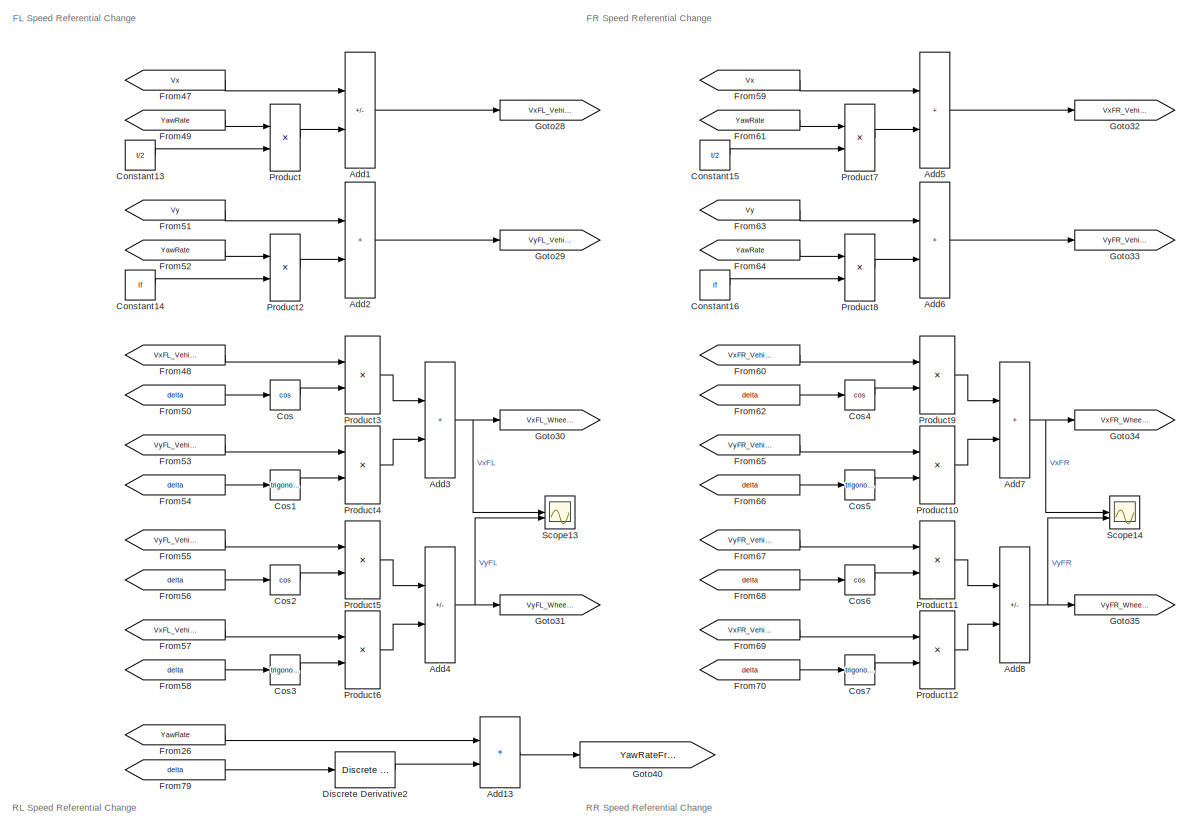
[diagram: root canvas - part 1/8, top center region]
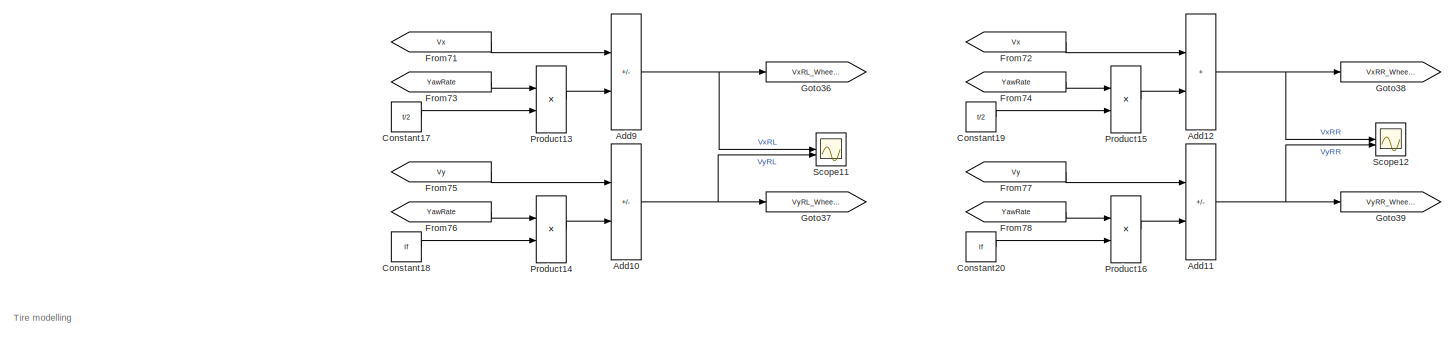
[diagram: root canvas - part 2/8, top center region]
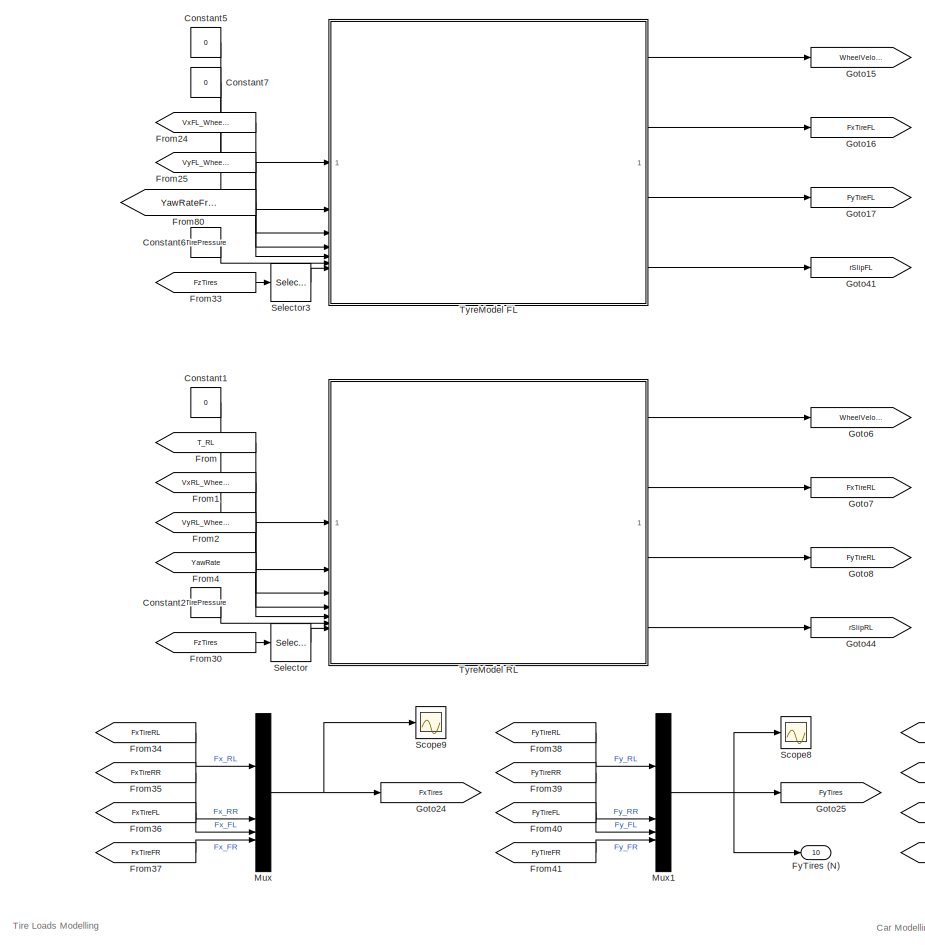
[diagram: root canvas - part 3/8, central region]
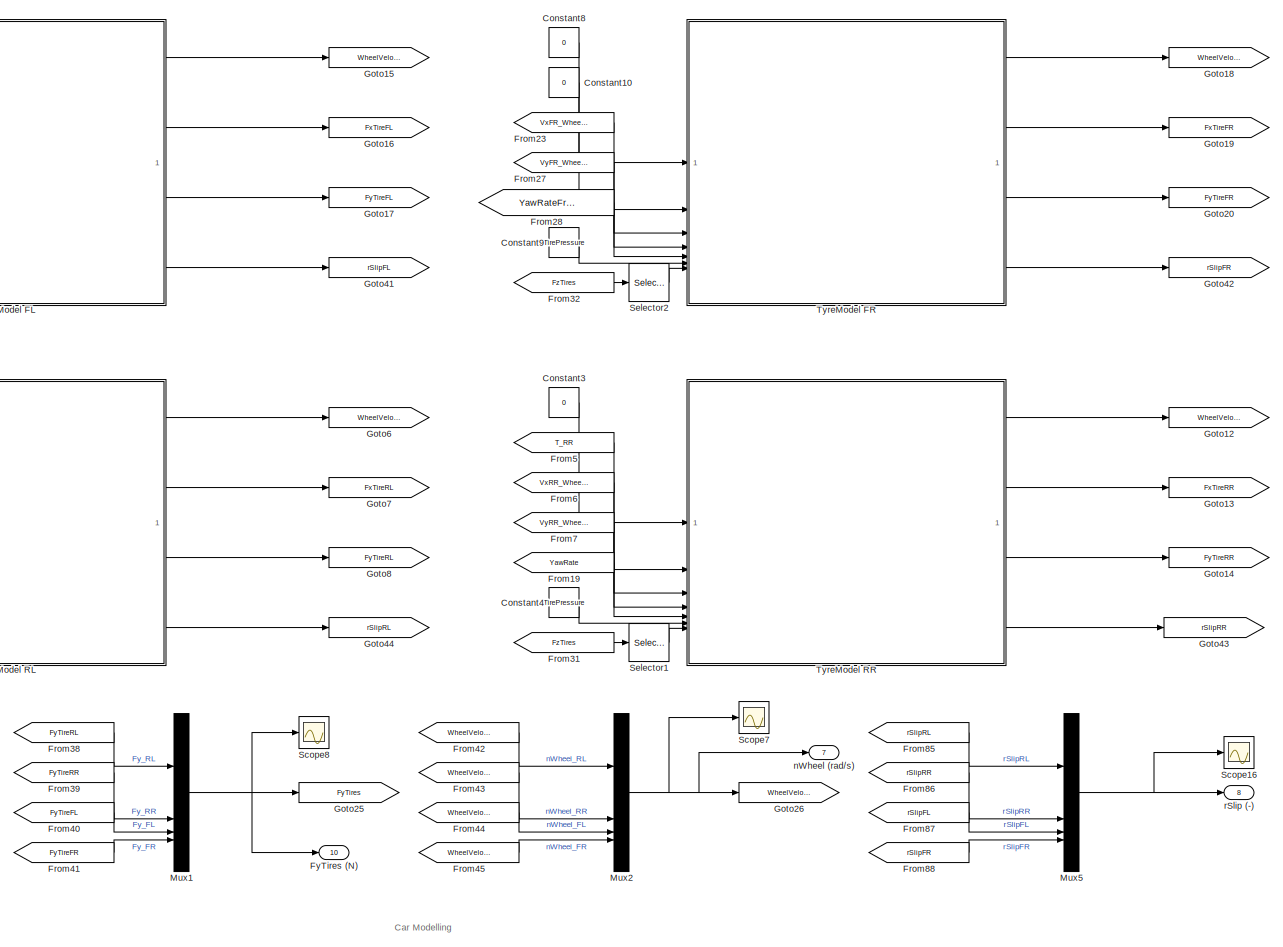
[diagram: root canvas - part 4/8, middle right region]
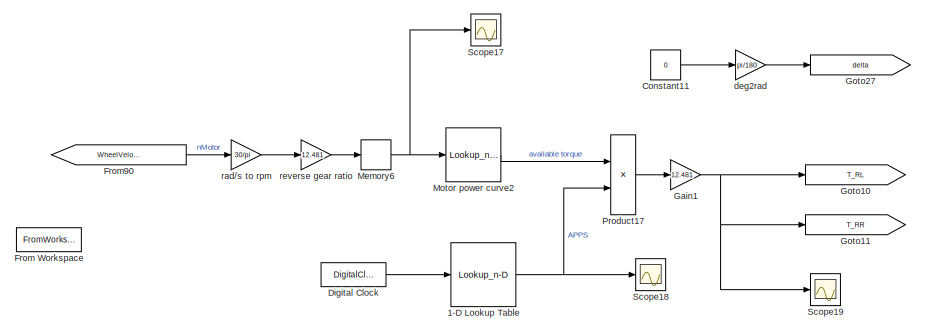
[diagram: root canvas - part 5/8, middle left region]
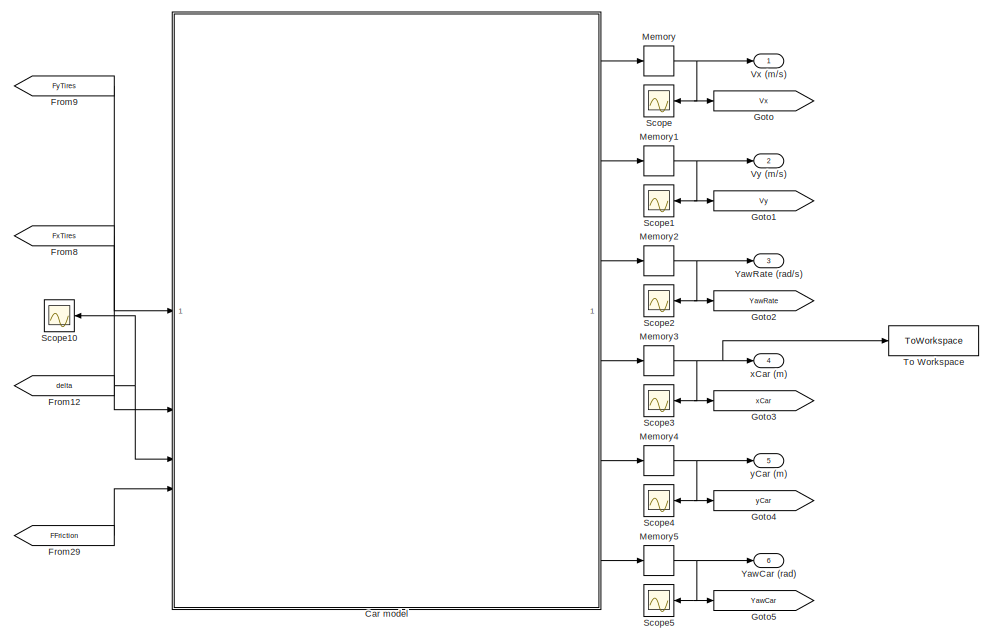
[diagram: root canvas - part 6/8, middle right region]
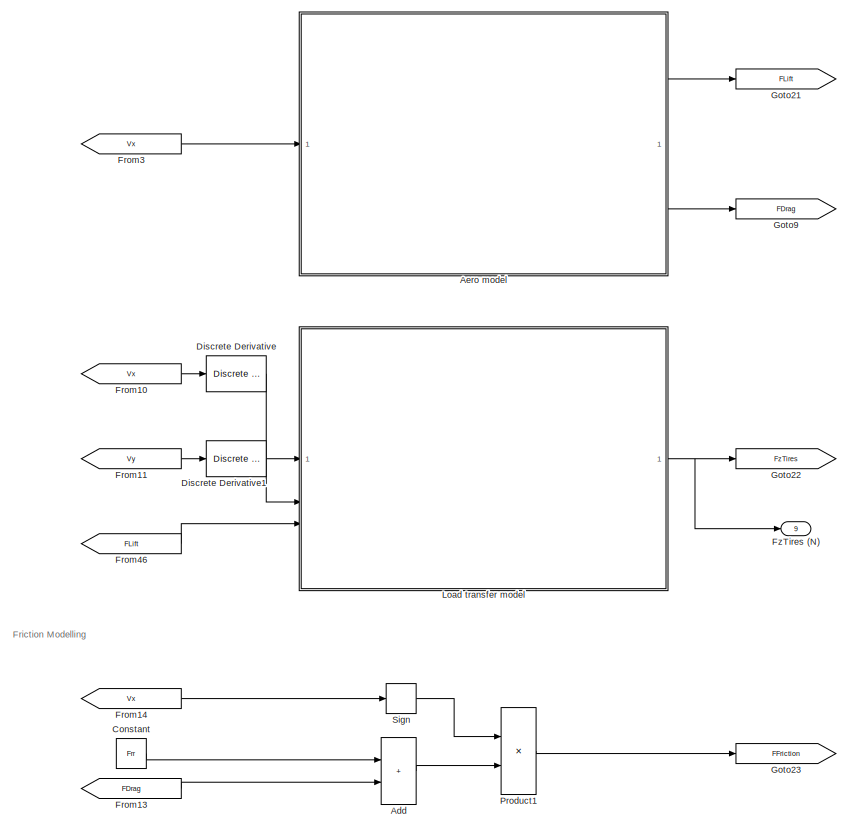
[diagram: root canvas - part 7/8, bottom center region]
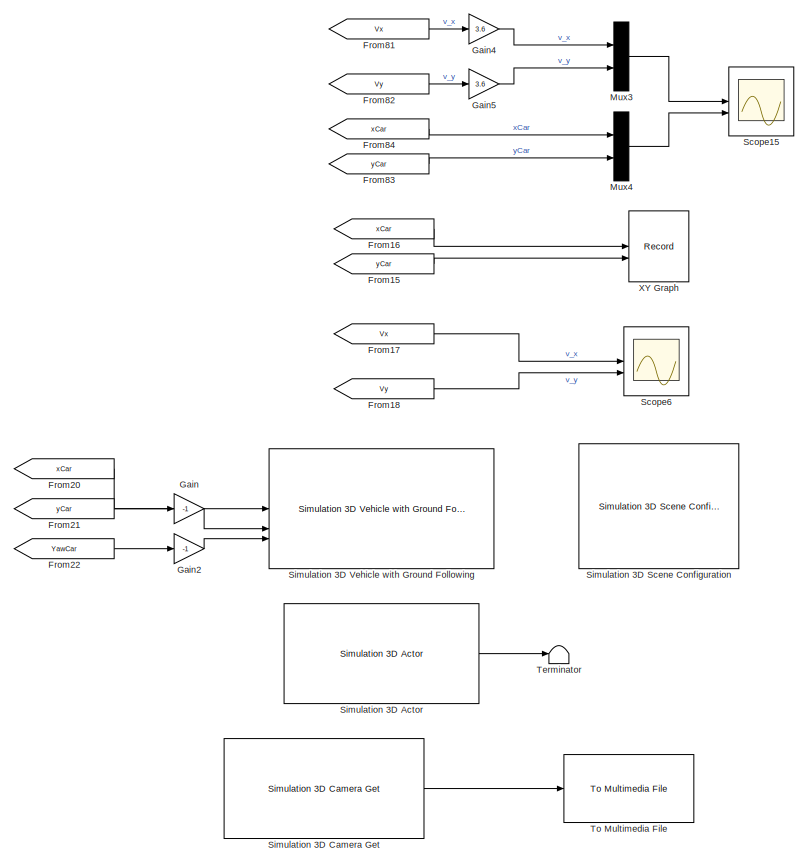
[diagram: root canvas - part 8/8, bottom right region]
MODEL slx_854171db82e5
KIND model
CONFIG AbsTol = auto
CONFIG EnableMultiTasking = off
CONFIG FixedStep = Ts
CONFIG MaxStep = 0.001
CONFIG MinStep = auto
CONFIG RelTol = 1e-3
CONFIG SampleTimeConstraint = Unconstrained
CONFIG SolverName = FixedStepAuto
CONFIG StartTime = 0.0
CONFIG StopTime = 5
BLOCK [Lookup_n-D] 1-D Lookup Table
  BreakpointsForDimension1 = t_vec
  InputPortMap = u0
  InternalRulePriority = Speed
  NumberOfTableDimensions = 1
  RndMeth = Simplest
  Table = u_vec
BLOCK [Sum] Add
  IconShape = rectangular
BLOCK [Sum] Add1
  IconShape = rectangular
  Inputs = +-
BLOCK [Sum] Add10
  IconShape = rectangular
  Inputs = +-
BLOCK [Sum] Add11
  IconShape = rectangular
  Inputs = +-
BLOCK [Sum] Add12
  IconShape = rectangular
BLOCK [Sum] Add13
  IconShape = rectangular
BLOCK [Sum] Add2
  IconShape = rectangular
BLOCK [Sum] Add3
  IconShape = rectangular
BLOCK [Sum] Add4
  IconShape = rectangular
  Inputs = +-
BLOCK [Sum] Add5
  IconShape = rectangular
BLOCK [Sum] Add6
  IconShape = rectangular
BLOCK [Sum] Add7
  IconShape = rectangular
BLOCK [Sum] Add8
  IconShape = rectangular
  Inputs = +-
BLOCK [Sum] Add9
  IconShape = rectangular
  Inputs = +-
BLOCK [ModelReference] Aero model
  ModelNameDialog = forces_aero.slx
  ModelReferenceVersion = 1.8
BLOCK [ModelReference] Car model
  ModelNameDialog = state_variables.slx
  ModelReferenceVersion = 1.15
BLOCK [Constant] Constant
  Value = Frr
BLOCK [Constant] Constant1
  Value = 0
BLOCK [Constant] Constant10
  Value = 0
BLOCK [Constant] Constant11
  Value = 0
BLOCK [Constant] Constant13
  Value = t/2
BLOCK [Constant] Constant14
  Value = lf
BLOCK [Constant] Constant15
  Value = t/2
BLOCK [Constant] Constant16
  Value = lf
BLOCK [Constant] Constant17
  Value = t/2
BLOCK [Constant] Constant18
  Value = lf
BLOCK [Constant] Constant19
  Value = t/2
BLOCK [Constant] Constant2
  Value = TirePressure
BLOCK [Constant] Constant20
  Value = lf
BLOCK [Constant] Constant3
  Value = 0
BLOCK [Constant] Constant4
  Value = TirePressure
BLOCK [Constant] Constant5
  Value = 0
BLOCK [Constant] Constant6
  Value = TirePressure
BLOCK [Constant] Constant7
  Value = 0
BLOCK [Constant] Constant8
  Value = 0
BLOCK [Constant] Constant9
  Value = TirePressure
BLOCK [Trigonometry] Cos
  Operator = cos
BLOCK [Trigonometry] Cos1
BLOCK [Trigonometry] Cos2
  Operator = cos
BLOCK [Trigonometry] Cos3
BLOCK [Trigonometry] Cos4
  Operator = cos
BLOCK [Trigonometry] Cos5
BLOCK [Trigonometry] Cos6
  Operator = cos
BLOCK [Trigonometry] Cos7
BLOCK [DigitalClock] Digital Clock
  SampleTime = Ts
BLOCK [Reference] Discrete Derivative  REF=simulink/Discrete/Discrete Derivative
  SourceBlock = simulink/Discrete/Discrete Derivative
  SourceType = Discrete Derivative
BLOCK [Reference] Discrete Derivative1  REF=simulink/Discrete/Discrete Derivative
  SourceBlock = simulink/Discrete/Discrete Derivative
  SourceType = Discrete Derivative
BLOCK [Reference] Discrete Derivative2  REF=simulink/Discrete/Discrete Derivative
  SourceBlock = simulink/Discrete/Discrete Derivative
  SourceType = Discrete Derivative
BLOCK [From] From
  GotoTag = T_RL
BLOCK [FromWorkspace] From Workspace
  Commented = on
  VariableName = PedalCmd
BLOCK [From] From1
  GotoTag = VxRL_WheelRef
BLOCK [From] From10
  GotoTag = Vx
BLOCK [From] From11
  GotoTag = Vy
BLOCK [From] From12
  GotoTag = delta
BLOCK [From] From13
  GotoTag = FDrag
BLOCK [From] From14
  GotoTag = Vx
BLOCK [From] From15
  GotoTag = yCar
BLOCK [From] From16
  GotoTag = xCar
BLOCK [From] From17
  GotoTag = Vx
BLOCK [From] From18
  GotoTag = Vy
BLOCK [From] From19
  GotoTag = YawRate
BLOCK [From] From2
  GotoTag = VyRL_WheelRef
BLOCK [From] From20
  Commented = on
  GotoTag = xCar
BLOCK [From] From21
  Commented = on
  GotoTag = yCar
BLOCK [From] From22
  Commented = on
  GotoTag = YawCar
BLOCK [From] From23
  GotoTag = VxFR_WheelRef
BLOCK [From] From24
  GotoTag = VxFL_WheelRef
BLOCK [From] From25
  GotoTag = VyFL_WheelRef
BLOCK [From] From26
  GotoTag = YawRate
BLOCK [From] From27
  GotoTag = VyFR_WheelRef
BLOCK [From] From28
  GotoTag = YawRateFrontWheels
BLOCK [From] From29
  GotoTag = FFriction
BLOCK [From] From3
  GotoTag = Vx
BLOCK [From] From30
  GotoTag = FzTires
BLOCK [From] From31
  GotoTag = FzTires
BLOCK [From] From32
  GotoTag = FzTires
BLOCK [From] From33
  GotoTag = FzTires
BLOCK [From] From34
  GotoTag = FxTireRL
BLOCK [From] From35
  GotoTag = FxTireRR
BLOCK [From] From36
  GotoTag = FxTireFL
BLOCK [From] From37
  GotoTag = FxTireFR
BLOCK [From] From38
  GotoTag = FyTireRL
BLOCK [From] From39
  GotoTag = FyTireRR
BLOCK [From] From4
  GotoTag = YawRate
BLOCK [From] From40
  GotoTag = FyTireFL
BLOCK [From] From41
  GotoTag = FyTireFR
BLOCK [From] From42
  GotoTag = WheelVelocityRL
BLOCK [From] From43
  GotoTag = WheelVelocityRR
BLOCK [From] From44
  GotoTag = WheelVelocityFL
BLOCK [From] From45
  GotoTag = WheelVelocityFR
BLOCK [From] From46
  GotoTag = FLift
BLOCK [From] From47
  GotoTag = Vx
BLOCK [From] From48
  GotoTag = VxFL_VehicleRef
BLOCK [From] From49
  GotoTag = YawRate
BLOCK [From] From5
  GotoTag = T_RR
BLOCK [From] From50
  GotoTag = delta
BLOCK [From] From51
  GotoTag = Vy
BLOCK [From] From52
  GotoTag = YawRate
BLOCK [From] From53
  GotoTag = VyFL_VehicleRef
BLOCK [From] From54
  GotoTag = delta
BLOCK [From] From55
  GotoTag = VyFL_VehicleRef
BLOCK [From] From56
  GotoTag = delta
BLOCK [From] From57
  GotoTag = VxFL_VehicleRef
BLOCK [From] From58
  GotoTag = delta
BLOCK [From] From59
  GotoTag = Vx
BLOCK [From] From6
  GotoTag = VxRR_WheelRef
BLOCK [From] From60
  GotoTag = VxFR_VehicleRef
BLOCK [From] From61
  GotoTag = YawRate
BLOCK [From] From62
  GotoTag = delta
BLOCK [From] From63
  GotoTag = Vy
BLOCK [From] From64
  GotoTag = YawRate
BLOCK [From] From65
  GotoTag = VyFR_VehicleRef
BLOCK [From] From66
  GotoTag = delta
BLOCK [From] From67
  GotoTag = VyFR_VehicleRef
BLOCK [From] From68
  GotoTag = delta
BLOCK [From] From69
  GotoTag = VxFR_VehicleRef
BLOCK [From] From7
  GotoTag = VyRR_WheelRef
BLOCK [From] From70
  GotoTag = delta
BLOCK [From] From71
  GotoTag = Vx
BLOCK [From] From72
  GotoTag = Vx
BLOCK [From] From73
  GotoTag = YawRate
BLOCK [From] From74
  GotoTag = YawRate
BLOCK [From] From75
  GotoTag = Vy
BLOCK [From] From76
  GotoTag = YawRate
BLOCK [From] From77
  GotoTag = Vy
BLOCK [From] From78
  GotoTag = YawRate
BLOCK [From] From79
  GotoTag = delta
BLOCK [From] From8
  GotoTag = FxTires
BLOCK [From] From80
  GotoTag = YawRateFrontWheels
BLOCK [From] From81
  GotoTag = Vx
BLOCK [From] From82
  GotoTag = Vy
BLOCK [From] From83
  GotoTag = yCar
BLOCK [From] From84
  GotoTag = xCar
BLOCK [From] From85
  GotoTag = rSlipRL
BLOCK [From] From86
  GotoTag = rSlipRR
BLOCK [From] From87
  GotoTag = rSlipFL
BLOCK [From] From88
  GotoTag = rSlipFR
BLOCK [From] From9
  GotoTag = FyTires
BLOCK [From] From90
  GotoTag = WheelVelocityRL
BLOCK [Outport] FyTires (N)
  Port = 10
BLOCK [Outport] FzTires (N)
  Port = 9
BLOCK [Gain] Gain
  Commented = on
  Gain = -1
BLOCK [Gain] Gain1
  Gain = 12.481
BLOCK [Gain] Gain2
  Commented = on
  Gain = -1
BLOCK [Gain] Gain4
  Gain = 3.6
BLOCK [Gain] Gain5
  Gain = 3.6
BLOCK [Goto] Goto
  GotoTag = Vx
BLOCK [Goto] Goto1
  GotoTag = Vy
BLOCK [Goto] Goto10
  GotoTag = T_RL
BLOCK [Goto] Goto11
  GotoTag = T_RR
BLOCK [Goto] Goto12
  GotoTag = WheelVelocityRR
BLOCK [Goto] Goto13
  GotoTag = FxTireRR
BLOCK [Goto] Goto14
  GotoTag = FyTireRR
BLOCK [Goto] Goto15
  GotoTag = WheelVelocityFL
BLOCK [Goto] Goto16
  GotoTag = FxTireFL
BLOCK [Goto] Goto17
  GotoTag = FyTireFL
BLOCK [Goto] Goto18
  GotoTag = WheelVelocityFR
BLOCK [Goto] Goto19
  GotoTag = FxTireFR
BLOCK [Goto] Goto2
  GotoTag = YawRate
BLOCK [Goto] Goto20
  GotoTag = FyTireFR
BLOCK [Goto] Goto21
  GotoTag = FLift
BLOCK [Goto] Goto22
  GotoTag = FzTires
BLOCK [Goto] Goto23
  GotoTag = FFriction
BLOCK [Goto] Goto24
  GotoTag = FxTires
BLOCK [Goto] Goto25
  GotoTag = FyTires
BLOCK [Goto] Goto26
  GotoTag = WheelVelocities
BLOCK [Goto] Goto27
  GotoTag = delta
BLOCK [Goto] Goto28
  GotoTag = VxFL_VehicleRef
BLOCK [Goto] Goto29
  GotoTag = VyFL_VehicleRef
BLOCK [Goto] Goto3
  GotoTag = xCar
BLOCK [Goto] Goto30
  GotoTag = VxFL_WheelRef
BLOCK [Goto] Goto31
  GotoTag = VyFL_WheelRef
BLOCK [Goto] Goto32
  GotoTag = VxFR_VehicleRef
BLOCK [Goto] Goto33
  GotoTag = VyFR_VehicleRef
BLOCK [Goto] Goto34
  GotoTag = VxFR_WheelRef
BLOCK [Goto] Goto35
  GotoTag = VyFR_WheelRef
BLOCK [Goto] Goto36
  GotoTag = VxRL_WheelRef
BLOCK [Goto] Goto37
  GotoTag = VyRL_WheelRef
BLOCK [Goto] Goto38
  GotoTag = VxRR_WheelRef
BLOCK [Goto] Goto39
  GotoTag = VyRR_WheelRef
BLOCK [Goto] Goto4
  GotoTag = yCar
BLOCK [Goto] Goto40
  GotoTag = YawRateFrontWheels
BLOCK [Goto] Goto41
  GotoTag = rSlipFL
BLOCK [Goto] Goto42
  GotoTag = rSlipFR
BLOCK [Goto] Goto43
  GotoTag = rSlipRR
BLOCK [Goto] Goto44
  GotoTag = rSlipRL
BLOCK [Goto] Goto5
  GotoTag = YawCar
BLOCK [Goto] Goto6
  GotoTag = WheelVelocityRL
BLOCK [Goto] Goto7
  GotoTag = FxTireRL
BLOCK [Goto] Goto8
  GotoTag = FyTireRL
BLOCK [Goto] Goto9
  GotoTag = FDrag
BLOCK [ModelReference] Load transfer model
  ModelNameDialog = charges_pneus.slx
  ModelReferenceVersion = 1.26
BLOCK [Memory] Memory
  InitialCondition = v0
BLOCK [Memory] Memory1
BLOCK [Memory] Memory2
BLOCK [Memory] Memory3
BLOCK [Memory] Memory4
BLOCK [Memory] Memory5
BLOCK [Memory] Memory6
  InitialCondition = v0/Re
BLOCK [Lookup_n-D] Motor power curve2
  BreakpointsForDimension1 = [0 11500 20000 20001]
  ExtrapMethod = Clip
  InputPortMap = u0
  InternalRulePriority = Speed
  NumberOfTableDimensions = 1
  RndMeth = Simplest
  Table = [32 32 18 0]
  UseLastTableValue = on
BLOCK [Mux] Mux
  DisplayOption = bar
BLOCK [Mux] Mux1
  DisplayOption = bar
BLOCK [Mux] Mux2
  DisplayOption = bar
BLOCK [Mux] Mux3
  DisplayOption = bar
  Inputs = 2
BLOCK [Mux] Mux4
  DisplayOption = bar
  Inputs = 2
BLOCK [Mux] Mux5
  DisplayOption = bar
BLOCK [Product] Product
BLOCK [Product] Product1
BLOCK [Product] Product10
BLOCK [Product] Product11
BLOCK [Product] Product12
BLOCK [Product] Product13
BLOCK [Product] Product14
BLOCK [Product] Product15
BLOCK [Product] Product16
BLOCK [Product] Product17
BLOCK [Product] Product2
BLOCK [Product] Product3
BLOCK [Product] Product4
BLOCK [Product] Product5
BLOCK [Product] Product6
BLOCK [Product] Product7
BLOCK [Product] Product8
BLOCK [Product] Product9
BLOCK [Scope] Scope
  Floating = off
  NameLocation = top
  NumInputPorts = 1
  ScopeSpecificationString = Simulink.scopes.TimeScopeBlockCfg('CurrentConfiguration', extmgr.ConfigurationSet(extmgr.Configuration('Core','General UI',true),extmgr.Configuration('Core','Source UI',true),extmgr.Configuration('Sources','WiredSimulink',true),extmgr.Configuration('Visuals','Time Domain',true,'SerializedDisplays',{struct('MinYLimReal','9.34475','MaxYLimReal','10.15357','YLabelReal','','MinYLimMag','9.34475','MaxY...<+1494ch>
BLOCK [Scope] Scope1
  Floating = off
  NameLocation = top
  NumInputPorts = 1
  ScopeSpecificationString = Simulink.scopes.TimeScopeBlockCfg('CurrentConfiguration', extmgr.ConfigurationSet(extmgr.Configuration('Core','General UI',true),extmgr.Configuration('Core','Source UI',true),extmgr.Configuration('Sources','WiredSimulink',true,'DataLoggingVariableName','ScopeData1'),extmgr.Configuration('Visuals','Time Domain',true,'SerializedDisplays',{struct('MinYLimReal','-1.00000','MaxYLimReal','1.00000','YLab...<+1511ch>
BLOCK [Scope] Scope10
  Floating = off
  NameLocation = top
  NumInputPorts = 1
  ScopeSpecificationString = Simulink.scopes.TimeScopeBlockCfg('CurrentConfiguration', extmgr.ConfigurationSet(extmgr.Configuration('Core','General UI',true),extmgr.Configuration('Core','Source UI',true),extmgr.Configuration('Sources','WiredSimulink',true,'DataLoggingVariableName','ScopeData4'),extmgr.Configuration('Visuals','Time Domain',true,'SerializedDisplays',{struct('MinYLimReal','-0.625','MaxYLimReal','5.625','YLabelRe...<+1440ch>
BLOCK [Scope] Scope11
  Floating = off
  NumInputPorts = 2
  ScopeSpecificationString = Simulink.scopes.TimeScopeBlockCfg('CurrentConfiguration', extmgr.ConfigurationSet(extmgr.Configuration('Core','General UI',true),extmgr.Configuration('Core','Source UI',true),extmgr.Configuration('Sources','WiredSimulink',true,'DataLoggingVariableName','ScopeData1'),extmgr.Configuration('Visuals','Time Domain',true,'SerializedDisplays',{struct('MinYLimReal','-4.49117','MaxYLimReal','40.42054','YLa...<+1463ch>
BLOCK [Scope] Scope12
  Floating = off
  NumInputPorts = 2
  ScopeSpecificationString = Simulink.scopes.TimeScopeBlockCfg('CurrentConfiguration', extmgr.ConfigurationSet(extmgr.Configuration('Core','General UI',true),extmgr.Configuration('Core','Source UI',true),extmgr.Configuration('Sources','WiredSimulink',true,'DataLoggingVariableName','ScopeData2'),extmgr.Configuration('Visuals','Time Domain',true,'SerializedDisplays',{struct('MinYLimReal','-4.49117','MaxYLimReal','40.42054','YLa...<+1463ch>
BLOCK [Scope] Scope13
  Floating = off
  NumInputPorts = 2
  ScopeSpecificationString = Simulink.scopes.TimeScopeBlockCfg('CurrentConfiguration', extmgr.ConfigurationSet(extmgr.Configuration('Core','General UI',true),extmgr.Configuration('Core','Source UI',true),extmgr.Configuration('Sources','WiredSimulink',true,'DataLoggingVariableName','ScopeData3'),extmgr.Configuration('Visuals','Time Domain',true,'SerializedDisplays',{struct('MinYLimReal','-4.49117','MaxYLimReal','40.42054','YLa...<+1492ch>
BLOCK [Scope] Scope14
  Floating = off
  NumInputPorts = 2
  ScopeSpecificationString = Simulink.scopes.TimeScopeBlockCfg('CurrentConfiguration', extmgr.ConfigurationSet(extmgr.Configuration('Core','General UI',true),extmgr.Configuration('Core','Source UI',true),extmgr.Configuration('Sources','WiredSimulink',true,'DataLoggingVariableName','ScopeData4'),extmgr.Configuration('Visuals','Time Domain',true,'SerializedDisplays',{struct('MinYLimReal','-4.49117','MaxYLimReal','40.42054','YLa...<+1492ch>
BLOCK [Scope] Scope15
  Floating = off
  NumInputPorts = 2
  ScopeSpecificationString = Simulink.scopes.TimeScopeBlockCfg('CurrentConfiguration', extmgr.ConfigurationSet(extmgr.Configuration('Core','General UI',true),extmgr.Configuration('Core','Source UI',true),extmgr.Configuration('Sources','WiredSimulink',true,'DataLoggingVariableName','ScopeData1'),extmgr.Configuration('Visuals','Time Domain',true,'SerializedDisplays',{struct('MinYLimReal','-9.82417','MaxYLimReal','88.41753','YLa...<+2589ch>
BLOCK [Scope] Scope16
  Floating = off
  NumInputPorts = 1
  ScopeSpecificationString = Simulink.scopes.TimeScopeBlockCfg('CurrentConfiguration', extmgr.ConfigurationSet(extmgr.Configuration('Core','General UI',true),extmgr.Configuration('Core','Source UI',true),extmgr.Configuration('Sources','WiredSimulink',true,'DataLoggingVariableName','ScopeData2'),extmgr.Configuration('Visuals','Time Domain',true,'SerializedDisplays',{struct('MinYLimReal','-0.14452','MaxYLimReal','1.12717','YLab...<+1603ch>
BLOCK [Scope] Scope17
  Floating = off
  NumInputPorts = 1
  ScopeSpecificationString = Simulink.scopes.TimeScopeBlockCfg('CurrentConfiguration', extmgr.ConfigurationSet(extmgr.Configuration('Core','General UI',true),extmgr.Configuration('Core','Source UI',true),extmgr.Configuration('Sources','WiredSimulink',true,'DataLoggingVariableName','ScopeData1'),extmgr.Configuration('Visuals','Time Domain',true,'SerializedDisplays',{struct('MinYLimReal','-2341.3507','MaxYLimReal','21072.15628'...<+1506ch>
BLOCK [Scope] Scope18
  Floating = off
  NumInputPorts = 1
  ScopeSpecificationString = Simulink.scopes.TimeScopeBlockCfg('CurrentConfiguration', extmgr.ConfigurationSet(extmgr.Configuration('Core','General UI',true),extmgr.Configuration('Core','Source UI',true),extmgr.Configuration('Sources','WiredSimulink',true,'DataLoggingVariableName','ScopeData1'),extmgr.Configuration('Visuals','Time Domain',true,'SerializedDisplays',{struct('MinYLimReal','0.53682','MaxYLimReal','1.05146','YLabe...<+1479ch>
BLOCK [Scope] Scope19
  Floating = off
  NumInputPorts = 1
  ScopeSpecificationString = Simulink.scopes.TimeScopeBlockCfg('CurrentConfiguration', extmgr.ConfigurationSet(extmgr.Configuration('Core','General UI',true),extmgr.Configuration('Core','Source UI',true),extmgr.Configuration('Sources','WiredSimulink',true,'DataLoggingVariableName','ScopeData1'),extmgr.Configuration('Visuals','Time Domain',true,'SerializedDisplays',{struct('MinYLimReal','214.4014','MaxYLimReal','419.93568','YL...<+1492ch>
BLOCK [Scope] Scope2
  Floating = off
  NameLocation = top
  NumInputPorts = 1
  ScopeSpecificationString = Simulink.scopes.TimeScopeBlockCfg('CurrentConfiguration', extmgr.ConfigurationSet(extmgr.Configuration('Core','General UI',true),extmgr.Configuration('Core','Source UI',true),extmgr.Configuration('Sources','WiredSimulink',true,'DataLoggingVariableName','ScopeData2'),extmgr.Configuration('Visuals','Time Domain',true,'SerializedDisplays',{struct('MinYLimReal','-1.53203','MaxYLimReal','13.78825','YLa...<+1532ch>
BLOCK [Scope] Scope3
  Floating = off
  NameLocation = top
  NumInputPorts = 1
  ScopeSpecificationString = Simulink.scopes.TimeScopeBlockCfg('CurrentConfiguration', extmgr.ConfigurationSet(extmgr.Configuration('Core','General UI',true),extmgr.Configuration('Core','Source UI',true),extmgr.Configuration('Sources','WiredSimulink',true,'DataLoggingVariableName','ScopeData3'),extmgr.Configuration('Visuals','Time Domain',true,'SerializedDisplays',{struct('MinYLimReal','-25.49746','MaxYLimReal','229.4771','YL...<+1461ch>
BLOCK [Scope] Scope4
  Floating = off
  NameLocation = top
  NumInputPorts = 1
  ScopeSpecificationString = Simulink.scopes.TimeScopeBlockCfg('CurrentConfiguration', extmgr.ConfigurationSet(extmgr.Configuration('Core','General UI',true),extmgr.Configuration('Core','Source UI',true),extmgr.Configuration('Sources','WiredSimulink',true,'DataLoggingVariableName','ScopeData4'),extmgr.Configuration('Visuals','Time Domain',true,'SerializedDisplays',{struct('MinYLimReal','-1.00000','MaxYLimReal','1.00000','YLab...<+1455ch>
BLOCK [Scope] Scope5
  Floating = off
  NameLocation = top
  NumInputPorts = 1
  ScopeSpecificationString = Simulink.scopes.TimeScopeBlockCfg('CurrentConfiguration', extmgr.ConfigurationSet(extmgr.Configuration('Core','General UI',true),extmgr.Configuration('Core','Source UI',true),extmgr.Configuration('Sources','WiredSimulink',true,'DataLoggingVariableName','ScopeData5'),extmgr.Configuration('Visuals','Time Domain',true,'SerializedDisplays',{struct('MinYLimReal','-0.0000000000000021','MaxYLimReal','0.0...<+1543ch>
BLOCK [Scope] Scope6
  Floating = off
  NumInputPorts = 2
  ScopeSpecificationString = Simulink.scopes.TimeScopeBlockCfg('CurrentConfiguration', extmgr.ConfigurationSet(extmgr.Configuration('Core','General UI',true),extmgr.Configuration('Core','Source UI',true),extmgr.Configuration('Sources','WiredSimulink',true,'DataLoggingVariableName','ScopeData1'),extmgr.Configuration('Visuals','Time Domain',true,'SerializedDisplays',{struct('MinYLimReal','-10.47953','MaxYLimReal','76.43162','YL...<+1880ch>
BLOCK [Scope] Scope7
  Floating = off
  NumInputPorts = 1
  ScopeSpecificationString = Simulink.scopes.TimeScopeBlockCfg('CurrentConfiguration', extmgr.ConfigurationSet(extmgr.Configuration('Core','General UI',true),extmgr.Configuration('Core','Source UI',true),extmgr.Configuration('Sources','WiredSimulink',true,'DataLoggingVariableName','ScopeData1'),extmgr.Configuration('Visuals','Time Domain',true,'SerializedDisplays',{struct('MinYLimReal','-19.64898','MaxYLimReal','176.8183','YL...<+1528ch>
BLOCK [Scope] Scope8
  Floating = off
  NumInputPorts = 1
  ScopeSpecificationString = Simulink.scopes.TimeScopeBlockCfg('CurrentConfiguration', extmgr.ConfigurationSet(extmgr.Configuration('Core','General UI',true),extmgr.Configuration('Core','Source UI',true),extmgr.Configuration('Sources','WiredSimulink',true,'DataLoggingVariableName','ScopeData2'),extmgr.Configuration('Visuals','Time Domain',true,'SerializedDisplays',{struct('MinYLimReal','-1.00000','MaxYLimReal','1.00000','YLab...<+1477ch>
BLOCK [Scope] Scope9
  Floating = off
  NumInputPorts = 1
  ScopeSpecificationString = Simulink.scopes.TimeScopeBlockCfg('CurrentConfiguration', extmgr.ConfigurationSet(extmgr.Configuration('Core','General UI',true),extmgr.Configuration('Core','Source UI',true),extmgr.Configuration('Sources','WiredSimulink',true,'DataLoggingVariableName','ScopeData3'),extmgr.Configuration('Visuals','Time Domain',true,'SerializedDisplays',{struct('MinYLimReal','-680.45499','MaxYLimReal','3437.37985',...<+1541ch>
BLOCK [Selector] Selector
  IndexOptions = Index vector (dialog)
  Indices = 1
  InputPortWidth = 4
  OutputSizes = 1
BLOCK [Selector] Selector1
  IndexOptions = Index vector (dialog)
  Indices = 2
  InputPortWidth = 4
  OutputSizes = 1
BLOCK [Selector] Selector2
  IndexOptions = Index vector (dialog)
  Indices = 4
  InputPortWidth = 4
  OutputSizes = 1
BLOCK [Selector] Selector3
  IndexOptions = Index vector (dialog)
  Indices = 3
  InputPortWidth = 4
  OutputSizes = 1
BLOCK [Signum] Sign
BLOCK [Reference] Simulation 3D Actor  REF=sim3dlib/Simulation 3D Actor
  Commented = on
  LibrarySourceBlock = sl3dlib/Simulation 3D/Simulation 3D Actor
  SourceBlock = sim3dlib/Simulation 3D Actor
  SourceType = Simulation 3D Actor
BLOCK [Reference] Simulation 3D Camera Get  REF=sim3dlib/Simulation 3D Camera Get
  Commented = on
  LibrarySourceBlock = sl3dlib/Simulation 3D/Utilities/Simulation 3D Camera Get
  Priority = 1
  SourceBlock = sim3dlib/Simulation 3D Camera Get
  SourceType = Simulation 3D Camera Get
BLOCK [Reference] Simulation 3D Scene Configuration  REF=sim3dlib/Simulation 3D Scene Configuration
  Commented = on
  LibrarySourceBlock = vehdynlibsim3dcore/Simulation 3D Scene Configuration
  Priority = 0
  SourceBlock = sim3dlib/Simulation 3D Scene Configuration
  SourceType = Simulation 3D Scene Configuration
BLOCK [Reference] Simulation 3D Vehicle with Ground Following  REF=sim3dautolib/Simulation 3D Vehicle with Ground Following VDBS
  Commented = on
  LibrarySourceBlock = vehdynlibsim3d/Simulation 3D Vehicle with Ground Following
  Priority = -1
  SourceBlock = sim3dautolib/Simulation 3D Vehicle with Ground Following VDBS
  SourceType = Simulation 3D Vehicle with Ground Following
BLOCK [Terminator] Terminator
  Commented = on
BLOCK [Reference] To Multimedia File  REF=dspvision/To Multimedia File
  Commented = on
  LibrarySourceBlock = visionsinks/To Multimedia File
  SourceBlock = dspvision/To Multimedia File
  SourceType = To Multimedia File
BLOCK [ToWorkspace] To Workspace
  FixptAsFi = on
  MaxDataPoints = inf
  SampleTime = Ts
  SaveFormat = Timeseries
  VariableName = xCar
BLOCK [ModelReference] TyreModel FL
  ModelNameDialog = tyre_model_v3.slx
  ModelReferenceVersion = 1.26
BLOCK [ModelReference] TyreModel FR
  ModelNameDialog = tyre_model_v3.slx
  ModelReferenceVersion = 1.26
BLOCK [ModelReference] TyreModel RL
  ModelNameDialog = tyre_model_v3.slx
  ModelReferenceVersion = 1.26
BLOCK [ModelReference] TyreModel RR
  ModelNameDialog = tyre_model_v3.slx
  ModelReferenceVersion = 1.26
BLOCK [Outport] Vx (m//s)
BLOCK [Outport] Vy (m//s)
  Port = 2
BLOCK [Record] XY Graph
  CompatibilityTag = XY
  FileSettingsInternal = {"entries":[{"content":{"excelSettings":{"content":{},"type":"Streamout.ExcelSettings"}},"type":"Streamout.FileSettingStorage","uuid":""}],"packageUris":["http:\/\/schema.mathworks.com\/mf0\/streamout_blocks\/R2020a"],"version":"1.0"}
  Layout = [1 1]
  SignalsInternal = {"entries":[{"content":{"signals":[{"content":{"blockPath":[],"dimensions":[1],"domain":"","lineColor":"#0072bd","lineWidth":2,"plots":[ 1 ],"port":1,"sid":[""],"signalID":1,"signalName":"From16"},"type":"RecordBlkView.Signal","uuid":""},{"content":{"blockPath":[],"dimensions":[1],"domain":"","lineColor":"#d95319","lineWidth":2,"plots":[ 1 ],"port":2,"sid":[""],"signalID":2,"signalName":"From15"},...<+186ch>
  VisualizationBindings = {"xyplotplugin":{"info":[{"series":[{"bindingParametersList":[{"parameter":"X-Axis","signalID":1,"signalName":"From16"},{"parameter":"Y-Axis","signalID":2,"signalName":"From15"}],"seriesID":0}],"subplotID":1}]}}
BLOCK [Outport] YawCar (rad)
  Port = 6
BLOCK [Outport] YawRate (rad//s)
  Port = 3
BLOCK [Gain] deg2rad
  Gain = pi/180
BLOCK [Outport] nWheel (rad//s)
  Port = 7
BLOCK [Outport] rSlip (-)
  Port = 8
BLOCK [Gain] rad//s to rpm
  Gain = 30/pi
BLOCK [Gain] reverse gear ratio
  Gain = 12.481
BLOCK [Outport] xCar (m)
  Port = 4
BLOCK [Outport] yCar (m)
  Port = 5
ANNOTATION (root): Car Modelling
ANNOTATION (root): FL Speed Referential Change
ANNOTATION (root): FR Speed Referential Change
ANNOTATION (root): Friction Modelling
ANNOTATION (root): RL Speed Referential Change
ANNOTATION (root): RR Speed Referential Change
ANNOTATION (root): Tire Loads Modelling
ANNOTATION (root): Tire modelling
NET 1-D Lookup Table:1 -> Product17:2, Scope18:1
NET Add10:1 -> Goto37:1, Scope11:2
NET Add11:1 -> Goto39:1, Scope12:2
NET Add12:1 -> Goto38:1, Scope12:1
LINE Add13:1 -> Goto40:1
LINE Add1:1 -> Goto28:1
LINE Add2:1 -> Goto29:1
NET Add3:1 -> Goto30:1, Scope13:1
NET Add4:1 -> Goto31:1, Scope13:2
LINE Add5:1 -> Goto32:1
LINE Add6:1 -> Goto33:1
NET Add7:1 -> Goto34:1, Scope14:1
NET Add8:1 -> Goto35:1, Scope14:2
NET Add9:1 -> Goto36:1, Scope11:1
LINE Add:1 -> Product1:2
LINE Aero model:1 -> Goto21:1
LINE Aero model:2 -> Goto9:1
LINE Car model:1 -> Memory:1
LINE Car model:2 -> Memory1:1
LINE Car model:3 -> Memory2:1
LINE Car model:4 -> Memory3:1
LINE Car model:5 -> Memory4:1
LINE Car model:6 -> Memory5:1
LINE Constant10:1 -> TyreModel FR:2
LINE Constant11:1 -> deg2rad:1
LINE Constant13:1 -> Product:2
LINE Constant14:1 -> Product2:2
LINE Constant15:1 -> Product7:2
LINE Constant16:1 -> Product8:2
LINE Constant17:1 -> Product13:2
LINE Constant18:1 -> Product14:2
LINE Constant19:1 -> Product15:2
LINE Constant1:1 -> TyreModel RL:1
LINE Constant20:1 -> Product16:2
LINE Constant2:1 -> TyreModel RL:6
LINE Constant3:1 -> TyreModel RR:1
LINE Constant4:1 -> TyreModel RR:6
LINE Constant5:1 -> TyreModel FL:1
LINE Constant6:1 -> TyreModel FL:6
LINE Constant7:1 -> TyreModel FL:2
LINE Constant8:1 -> TyreModel FR:1
LINE Constant9:1 -> TyreModel FR:6
LINE Constant:1 -> Add:1
LINE Cos1:1 -> Product4:2
LINE Cos2:1 -> Product5:2
LINE Cos3:1 -> Product6:2
LINE Cos4:1 -> Product9:2
LINE Cos5:1 -> Product10:2
LINE Cos6:1 -> Product11:2
LINE Cos7:1 -> Product12:2
LINE Cos:1 -> Product3:2
LINE Digital Clock:1 -> 1-D Lookup Table:1
LINE Discrete Derivative1:1 -> Load transfer model:2
LINE Discrete Derivative2:1 -> Add13:2
LINE Discrete Derivative:1 -> Load transfer model:1
LINE From10:1 -> Discrete Derivative:1
LINE From11:1 -> Discrete Derivative1:1
NET From12:1 -> Car model:3, Scope10:1
LINE From13:1 -> Add:2
LINE From14:1 -> Sign:1
LINE From15:1 -> XY Graph:2
LINE From16:1 -> XY Graph:1
LINE From17:1 -> Scope6:1
LINE From18:1 -> Scope6:2
LINE From19:1 -> TyreModel RR:5
LINE From1:1 -> TyreModel RL:3
LINE From20:1 -> Simulation 3D Vehicle with Ground Following:1
LINE From21:1 -> Gain:1
LINE From22:1 -> Gain2:1
LINE From23:1 -> TyreModel FR:3
LINE From24:1 -> TyreModel FL:3
LINE From25:1 -> TyreModel FL:4
LINE From26:1 -> Add13:1
LINE From27:1 -> TyreModel FR:4
LINE From28:1 -> TyreModel FR:5
LINE From29:1 -> Car model:4
LINE From2:1 -> TyreModel RL:4
LINE From30:1 -> Selector:1
LINE From31:1 -> Selector1:1
LINE From32:1 -> Selector2:1
LINE From33:1 -> Selector3:1
LINE From34:1 -> Mux:1
LINE From35:1 -> Mux:2
LINE From36:1 -> Mux:3
LINE From37:1 -> Mux:4
LINE From38:1 -> Mux1:1
LINE From39:1 -> Mux1:2
LINE From3:1 -> Aero model:1
LINE From40:1 -> Mux1:3
LINE From41:1 -> Mux1:4
LINE From42:1 -> Mux2:1
LINE From43:1 -> Mux2:2
LINE From44:1 -> Mux2:3
LINE From45:1 -> Mux2:4
LINE From46:1 -> Load transfer model:3
LINE From47:1 -> Add1:1
LINE From48:1 -> Product3:1
LINE From49:1 -> Product:1
LINE From4:1 -> TyreModel RL:5
LINE From50:1 -> Cos:1
LINE From51:1 -> Add2:1
LINE From52:1 -> Product2:1
LINE From53:1 -> Product4:1
LINE From54:1 -> Cos1:1
LINE From55:1 -> Product5:1
LINE From56:1 -> Cos2:1
LINE From57:1 -> Product6:1
LINE From58:1 -> Cos3:1
LINE From59:1 -> Add5:1
LINE From5:1 -> TyreModel RR:2
LINE From60:1 -> Product9:1
LINE From61:1 -> Product7:1
LINE From62:1 -> Cos4:1
LINE From63:1 -> Add6:1
LINE From64:1 -> Product8:1
LINE From65:1 -> Product10:1
LINE From66:1 -> Cos5:1
LINE From67:1 -> Product11:1
LINE From68:1 -> Cos6:1
LINE From69:1 -> Product12:1
LINE From6:1 -> TyreModel RR:3
LINE From70:1 -> Cos7:1
LINE From71:1 -> Add9:1
LINE From72:1 -> Add12:1
LINE From73:1 -> Product13:1
LINE From74:1 -> Product15:1
LINE From75:1 -> Add10:1
LINE From76:1 -> Product14:1
LINE From77:1 -> Add11:1
LINE From78:1 -> Product16:1
LINE From79:1 -> Discrete Derivative2:1
LINE From7:1 -> TyreModel RR:4
LINE From80:1 -> TyreModel FL:5
LINE From81:1 -> Gain4:1
LINE From82:1 -> Gain5:1
LINE From83:1 -> Mux4:2
LINE From84:1 -> Mux4:1
LINE From85:1 -> Mux5:1
LINE From86:1 -> Mux5:2
LINE From87:1 -> Mux5:3
LINE From88:1 -> Mux5:4
LINE From8:1 -> Car model:2
LINE From90:1 -> rad//s to rpm:1
LINE From9:1 -> Car model:1
LINE From:1 -> TyreModel RL:2
NET Gain1:1 -> Goto10:1, Goto11:1, Scope19:1
LINE Gain2:1 -> Simulation 3D Vehicle with Ground Following:3
LINE Gain4:1 -> Mux3:1
LINE Gain5:1 -> Mux3:2
LINE Gain:1 -> Simulation 3D Vehicle with Ground Following:2
NET Load transfer model:1 -> FzTires (N):1, Goto22:1
NET Memory1:1 -> Goto1:1, Scope1:1, Vy (m//s):1
NET Memory2:1 -> Goto2:1, Scope2:1, YawRate (rad//s):1
NET Memory3:1 -> Goto3:1, Scope3:1, To Workspace:1, xCar (m):1
NET Memory4:1 -> Goto4:1, Scope4:1, yCar (m):1
NET Memory5:1 -> Goto5:1, Scope5:1, YawCar (rad):1
NET Memory6:1 -> Motor power curve2:1, Scope17:1
NET Memory:1 -> Goto:1, Scope:1, Vx (m//s):1
LINE Motor power curve2:1 -> Product17:1
NET Mux1:1 -> FyTires (N):1, Goto25:1, Scope8:1
NET Mux2:1 -> Goto26:1, Scope7:1, nWheel (rad//s):1
LINE Mux3:1 -> Scope15:1
LINE Mux4:1 -> Scope15:2
NET Mux5:1 -> Scope16:1, rSlip (-):1
NET Mux:1 -> Goto24:1, Scope9:1
LINE Product10:1 -> Add7:2
LINE Product11:1 -> Add8:1
LINE Product12:1 -> Add8:2
LINE Product13:1 -> Add9:2
LINE Product14:1 -> Add10:2
LINE Product15:1 -> Add12:2
LINE Product16:1 -> Add11:2
LINE Product17:1 -> Gain1:1
LINE Product1:1 -> Goto23:1
LINE Product2:1 -> Add2:2
LINE Product3:1 -> Add3:1
LINE Product4:1 -> Add3:2
LINE Product5:1 -> Add4:1
LINE Product6:1 -> Add4:2
LINE Product7:1 -> Add5:2
LINE Product8:1 -> Add6:2
LINE Product9:1 -> Add7:1
LINE Product:1 -> Add1:2
LINE Selector1:1 -> TyreModel RR:7
LINE Selector2:1 -> TyreModel FR:7
LINE Selector3:1 -> TyreModel FL:7
LINE Selector:1 -> TyreModel RL:7
LINE Sign:1 -> Product1:1
LINE Simulation 3D Actor:1 -> Terminator:1
LINE Simulation 3D Camera Get:1 -> To Multimedia File:1
LINE TyreModel FL:1 -> Goto15:1
LINE TyreModel FL:2 -> Goto16:1
LINE TyreModel FL:3 -> Goto17:1
LINE TyreModel FL:4 -> Goto41:1
LINE TyreModel FR:1 -> Goto18:1
LINE TyreModel FR:2 -> Goto19:1
LINE TyreModel FR:3 -> Goto20:1
LINE TyreModel FR:4 -> Goto42:1
LINE TyreModel RL:1 -> Goto6:1
LINE TyreModel RL:2 -> Goto7:1
LINE TyreModel RL:3 -> Goto8:1
LINE TyreModel RL:4 -> Goto44:1
LINE TyreModel RR:1 -> Goto12:1
LINE TyreModel RR:2 -> Goto13:1
LINE TyreModel RR:3 -> Goto14:1
LINE TyreModel RR:4 -> Goto43:1
LINE deg2rad:1 -> Goto27:1
LINE rad//s to rpm:1 -> reverse gear ratio:1
LINE reverse gear ratio:1 -> Memory6:1
note: NET lines group one-source signal fan-out (src -> all destinations, sorted); 1:1 wires keep LINE
